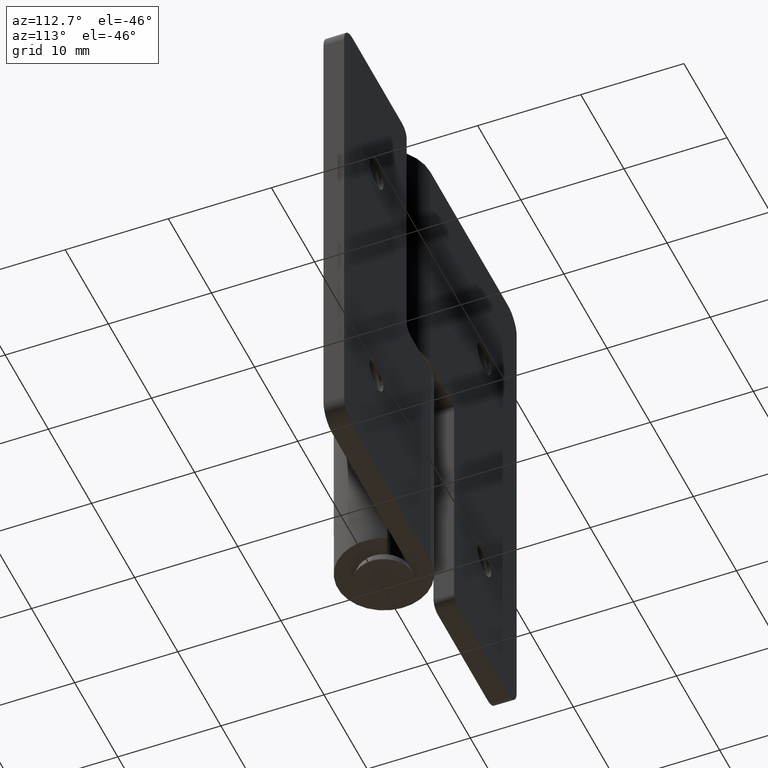
[diagram: clean part render]
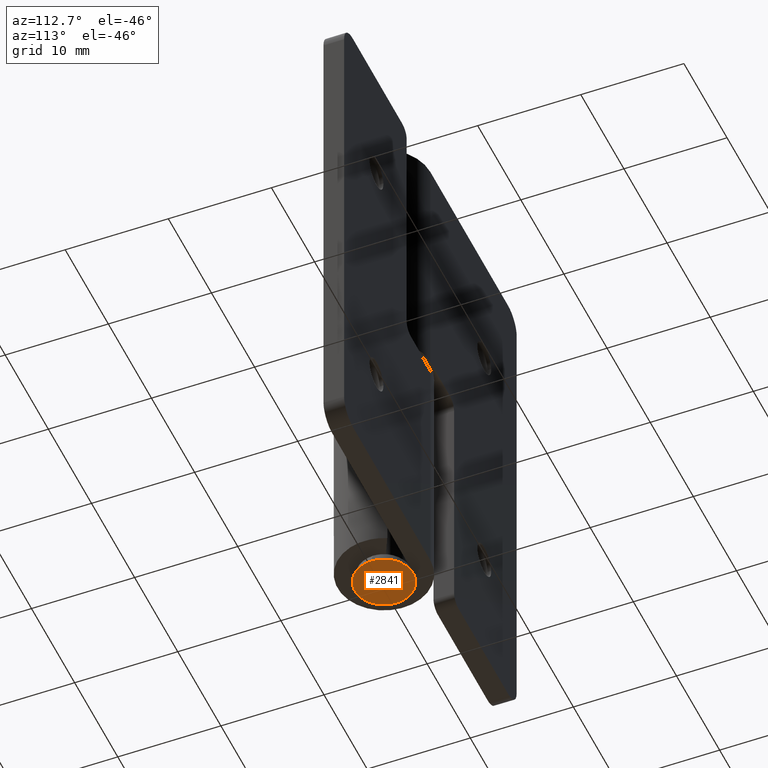
[diagram: same view with one face highlighted and labeled with its STEP entity id]
A machine part, auxiliary view. The second image highlights one B-rep face of the part: STEP entity #2841.
In plain terms, the highlighted face is a freeform B-spline surface patch.
Its self-contained STEP definition (entity closure, byte-faithful):
#2788=CARTESIAN_POINT('',(-3.134714988952251,-3.134714988952170,-0.999999999999958));
#2789=CARTESIAN_POINT('',(3.134715141838171,-3.134714988952170,-0.999999999999958));
#2790=CARTESIAN_POINT('',(-3.134714988952251,3.134715141838098,-0.999999999999958));
#2791=CARTESIAN_POINT('',(3.134715141838171,3.134715141838098,-0.999999999999958));
#2792=B_SPLINE_SURFACE_WITH_KNOTS('',1,1,((#2788,#2790),(#2789,#2791)),.UNSPECIFIED.,.F.,.F.,.U.,(2,2),(2,2),(0.0,6.269430130790422),(0.0,6.269430130790267),.UNSPECIFIED.);
#2793=CARTESIAN_POINT('',(-2.849999999999960,7.105427E-015,-0.999999999999915));
#2794=VERTEX_POINT('',#2793);
#2795=CARTESIAN_POINT('',(2.849999999999967,7.105427E-015,-0.999999999999915));
#2796=VERTEX_POINT('',#2795);
#2797=CARTESIAN_POINT('',(-2.849999999999960,7.105427E-015,-0.999999999999915));
#2798=CARTESIAN_POINT('',(-2.850040128368308,0.221497660082026,-0.999999999999916));
#2799=CARTESIAN_POINT('',(-2.795391772236509,0.687823299746905,-0.999999999999914));
#2800=CARTESIAN_POINT('',(-2.591426464911673,1.226494483494163,-0.999999999999912));
#2801=CARTESIAN_POINT('',(-2.318480086475331,1.675487471619620,-0.999999999999920));
#2802=CARTESIAN_POINT('',(-2.041633211193624,2.008660876393984,-0.999999999999911));
#2803=CARTESIAN_POINT('',(-1.685515954841549,2.312040555080885,-0.999999999999918));
#2804=CARTESIAN_POINT('',(-1.297375261682566,2.551205089546660,-0.999999999999912));
#2805=CARTESIAN_POINT('',(-0.832518825293853,2.743773798269809,-0.999999999999924));
#2806=CARTESIAN_POINT('',(-0.235442467127103,2.866391401177701,-0.999999999999909));
#2807=CARTESIAN_POINT('',(0.457796113141368,2.845167795676023,-0.999999999999917));
#2808=CARTESIAN_POINT('',(1.100155246251883,2.654534572895321,-0.999999999999935));
#2809=CARTESIAN_POINT('',(1.641909451064963,2.351979538729166,-0.999999999999852));
#2810=CARTESIAN_POINT('',(2.114852744815784,1.949112665613240,-0.999999999999935));
#2811=CARTESIAN_POINT('',(2.524631465038186,1.389527692867260,-0.999999999999906));
#2812=CARTESIAN_POINT('',(2.791029926177226,0.711116572714488,-0.999999999999920));
#2813=CARTESIAN_POINT('',(2.850056106568571,0.233161394828057,-0.999999999999914));
#2814=CARTESIAN_POINT('',(2.849999999999967,7.105427E-015,-0.999999999999915));
#2815=B_SPLINE_CURVE_WITH_KNOTS('',3,(#2797,#2798,#2799,#2800,#2801,#2802,#2803,#2804,#2805,#2806,#2807,#2808,#2809,#2810,#2811,#2812,#2813,#2814),.UNSPECIFIED.,.F.,.U.,(4,1,1,1,1,1,1,1,1,1,1,1,1,1,1,4),(0.000000145207176,0.664495335707398,1.398996913856368,1.713770478763022,2.238400380415758,2.693084370887936,3.112784065832971,3.602435311602044,4.197027307592136,4.931467144417230,5.665943020761005,6.190561981479855,6.785147639840167,7.519637308624553,8.254121902468304,8.953595242436336),.UNSPECIFIED.);
#2816=EDGE_CURVE('',#2794,#2796,#2815,.T.);
#2817=ORIENTED_EDGE('',*,*,#2816,.T.);
#2818=CARTESIAN_POINT('',(2.849999999999967,7.105427E-015,-0.999999999999915));
#2819=CARTESIAN_POINT('',(2.850043957537904,-0.221499632617403,-0.999999999999919));
#2820=CARTESIAN_POINT('',(2.798110226697647,-0.664494583322462,-0.999999999999910));
#2821=CARTESIAN_POINT('',(2.584951785677870,-1.248926031266769,-0.999999999999913));
#2822=CARTESIAN_POINT('',(2.268587323429363,-1.755343917072161,-0.999999999999919));
#2823=CARTESIAN_POINT('',(1.891153002403267,-2.156677069871875,-0.999999999999913));
#2824=CARTESIAN_POINT('',(1.405089482170777,-2.503498845038051,-0.999999999999916));
#2825=CARTESIAN_POINT('',(0.910143928255022,-2.719268142069147,-0.999999999999917));
#2826=CARTESIAN_POINT('',(0.385469273760493,-2.837046303429636,-0.999999999999909));
#2827=CARTESIAN_POINT('',(-0.152248873221160,-2.866812300748070,-0.999999999999916));
#2828=CARTESIAN_POINT('',(-0.709017531673905,-2.780730698258896,-0.999999999999917));
#2829=CARTESIAN_POINT('',(-1.301322024248035,-2.560567297948603,-0.999999999999921));
#2830=CARTESIAN_POINT('',(-1.865258384907393,-2.198701306825083,-0.999999999999884));
#2831=CARTESIAN_POINT('',(-2.363007476483273,-1.649466526720791,-0.999999999999921));
#2832=CARTESIAN_POINT('',(-2.671321545420873,-1.055140391480956,-0.999999999999916));
#2833=CARTESIAN_POINT('',(-2.820879258593323,-0.501291926879608,-0.999999999999915));
#2834=CARTESIAN_POINT('',(-2.850010423235630,-0.163211338152714,-0.999999999999915));
#2835=CARTESIAN_POINT('',(-2.849999999999960,7.105427E-015,-0.999999999999915));
#2836=B_SPLINE_CURVE_WITH_KNOTS('',3,(#2818,#2819,#2820,#2821,#2822,#2823,#2824,#2825,#2826,#2827,#2828,#2829,#2830,#2831,#2832,#2833,#2834,#2835),.UNSPECIFIED.,.F.,.U.,(4,1,1,1,1,1,1,1,1,1,1,1,1,1,1,4),(0.000000145207592,0.664495335707736,1.329032429513761,1.853672193074908,2.448254277006661,2.972877352661381,3.637423819572697,4.057128875875460,4.581691310287066,5.246219900828669,5.735877744498182,6.470370328944050,7.239823481075344,7.939329537438256,8.463958686986748,8.953595242436334),.UNSPECIFIED.);
#2837=EDGE_CURVE('',#2796,#2794,#2836,.T.);
#2838=ORIENTED_EDGE('',*,*,#2837,.T.);
#2839=EDGE_LOOP('',(#2817,#2838));
#2840=FACE_OUTER_BOUND('',#2839,.T.);
#2841=ADVANCED_FACE('',(#2840),#2792,.F.);